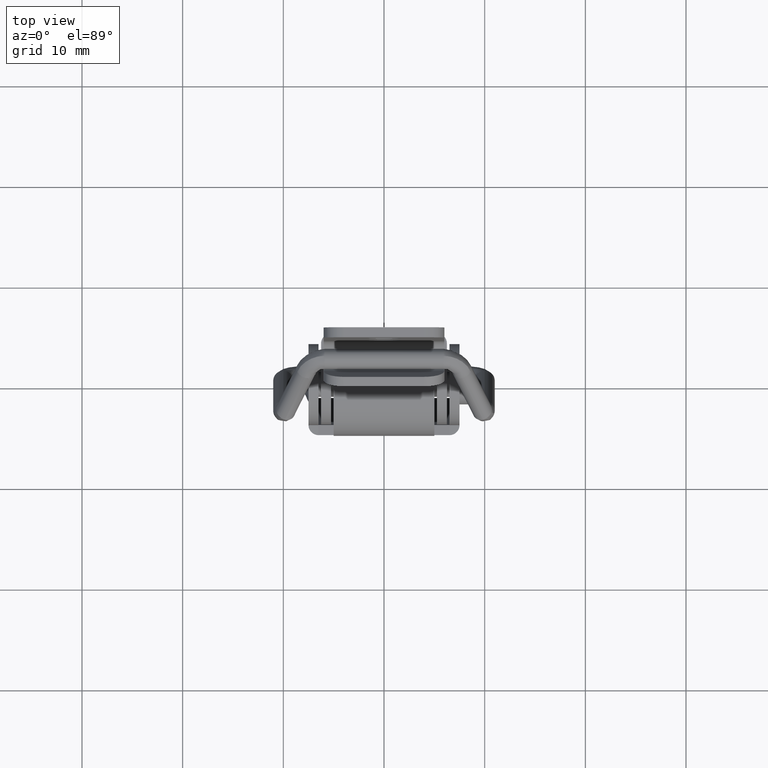
[diagram: clean part render]
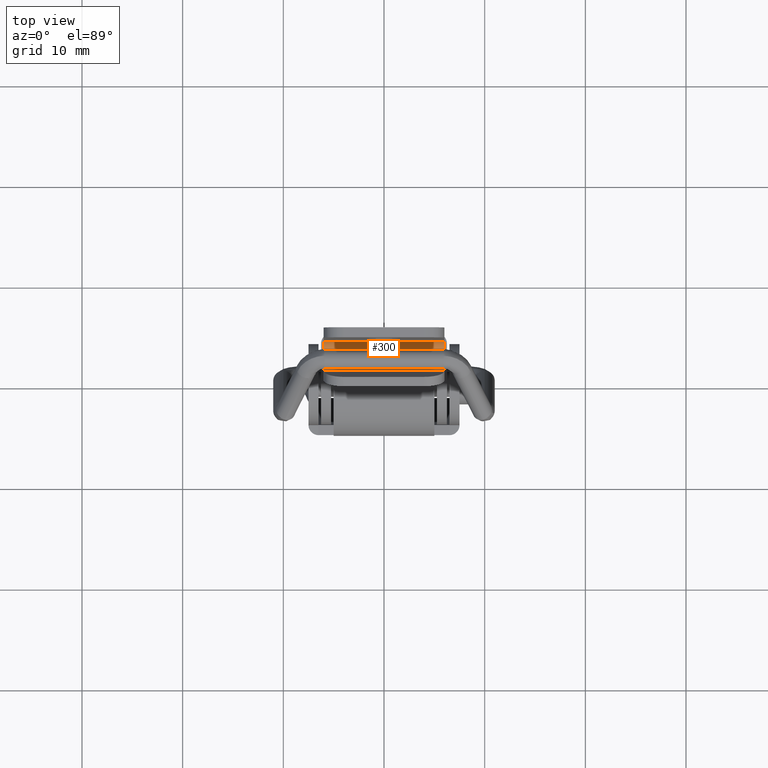
[diagram: same view with one face highlighted and labeled with its STEP entity id]
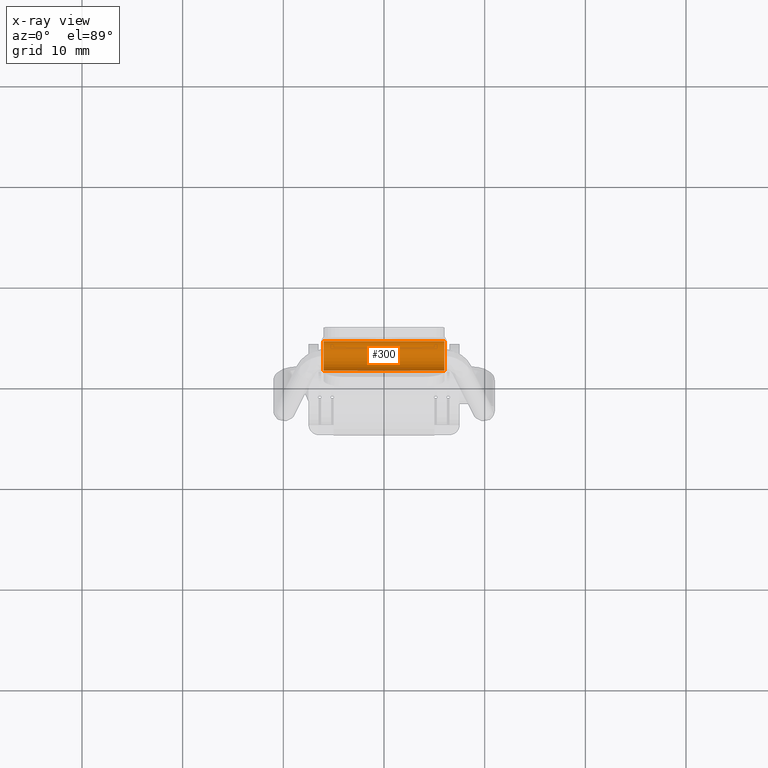
[diagram: x-ray of the same camera — body ghosted, the highlighted face saturated]
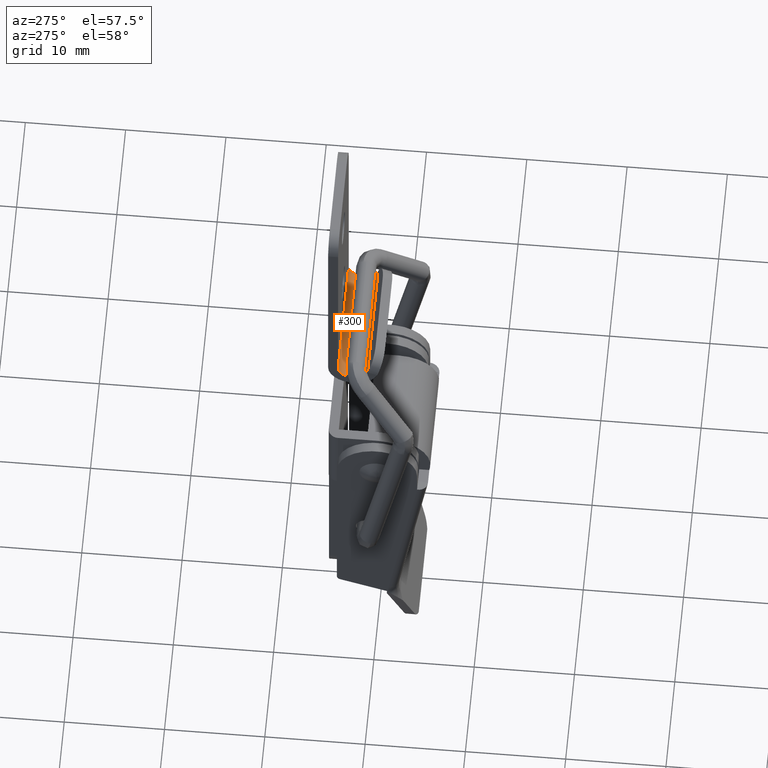
[diagram: same view with one face highlighted and labeled with its STEP entity id]
A machine part, top view. The second image highlights one B-rep face of the part: STEP entity #300.
The next image is the same camera in x-ray: the body ghosted, the highlighted face saturated — about 0% of this face is hidden behind the body in this view.
A second angle (auxiliary view) of the same face is appended — the face is thin or edge-on in the first view.
In plain terms, the highlighted cylindrical surface (edge-blend (fillet) strip) has radius 1.5 mm, axis along (1, 0, 0).
Its self-contained STEP definition (entity closure, byte-faithful):
#300=ADVANCED_FACE('',(#1468),#1467,.F.);
#1467=CYLINDRICAL_SURFACE('',#3554,1.50000000000E+00);
#1468=FACE_OUTER_BOUND('',#3555,.T.);
#3551=CARTESIAN_POINT('',(9.94000000000E+02,0.00000000000E+00,2.50000000000E+00));
#3552=DIRECTION('',(1.00000000000E+00,-0.00000000000E+00,-0.00000000000E+00));
#3553=DIRECTION('',(0.00000000000E+00,-1.56434465040E-01,9.87688340595E-01));
#3554=AXIS2_PLACEMENT_3D('',#3551,#3552,#3553);
#3555=EDGE_LOOP('',(#4226,#4227,#4228,#4229));
#4226=ORIENTED_EDGE('',*,*,#4580,.T.);
#4227=ORIENTED_EDGE('',*,*,#4595,.F.);
#4228=ORIENTED_EDGE('',*,*,#4594,.F.);
#4229=ORIENTED_EDGE('',*,*,#4596,.T.);
#4580=EDGE_CURVE('',#6605,#6598,#6606,.T.);
#4594=EDGE_CURVE('',#6692,#6664,#6699,.T.);
#4595=EDGE_CURVE('',#6664,#6598,#6705,.T.);
#4596=EDGE_CURVE('',#6692,#6605,#6711,.T.);
#6598=VERTEX_POINT('',#8299);
#6605=VERTEX_POINT('',#8303);
#6606=CIRCLE('',#8307,1.50000000000E+00);
#6664=VERTEX_POINT('',#8337);
#6692=VERTEX_POINT('',#8354);
#6699=CIRCLE('',#8361,1.50000000000E+00);
#6705=LINE('',#8362,#8363);
#6711=LINE('',#8365,#8366);
#8299=CARTESIAN_POINT('',(-6.00000000000E+00,-1.42658477444E+00,2.03647450844E+00));
#8303=CARTESIAN_POINT('',(-6.00000000000E+00,1.50000000000E+00,2.50000000000E+00));
#8304=CARTESIAN_POINT('',(-6.00000000000E+00,0.00000000000E+00,2.50000000000E+00));
#8305=DIRECTION('',(-1.00000000000E+00,-0.00000000000E+00,-0.00000000000E+00));
#8306=DIRECTION('',(-0.00000000000E+00,-0.00000000000E+00,1.00000000000E+00));
#8307=AXIS2_PLACEMENT_3D('',#8304,#8305,#8306);
#8337=CARTESIAN_POINT('',(6.00000000000E+00,-1.42658477444E+00,2.03647450844E+00));
#8354=CARTESIAN_POINT('',(6.00000000000E+00,1.50000000000E+00,2.50000000000E+00));
#8358=CARTESIAN_POINT('',(6.00000000000E+00,0.00000000000E+00,2.50000000000E+00));
#8359=DIRECTION('',(-1.00000000000E+00,-0.00000000000E+00,-0.00000000000E+00));
#8360=DIRECTION('',(-0.00000000000E+00,-0.00000000000E+00,1.00000000000E+00));
#8361=AXIS2_PLACEMENT_3D('',#8358,#8359,#8360);
#8362=CARTESIAN_POINT('',(6.00000000000E+00,-1.42658477444E+00,2.03647450844E+00));
#8363=VECTOR('',#8364,1.20000000000E+01);
#8364=DIRECTION('',(-1.00000000000E+00,0.00000000000E+00,0.00000000000E+00));
#8365=CARTESIAN_POINT('',(6.00000000000E+00,1.50000000000E+00,2.50000000000E+00));
#8366=VECTOR('',#8367,1.20000000000E+01);
#8367=DIRECTION('',(-1.00000000000E+00,0.00000000000E+00,0.00000000000E+00));